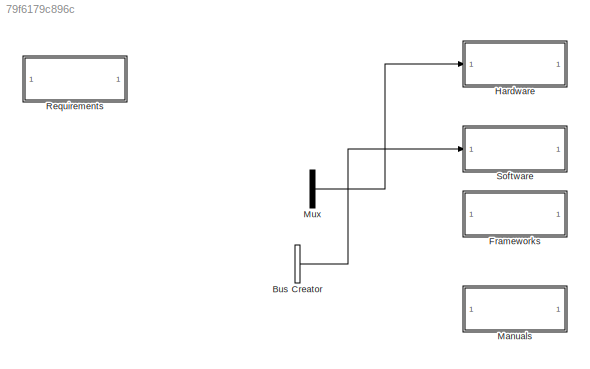
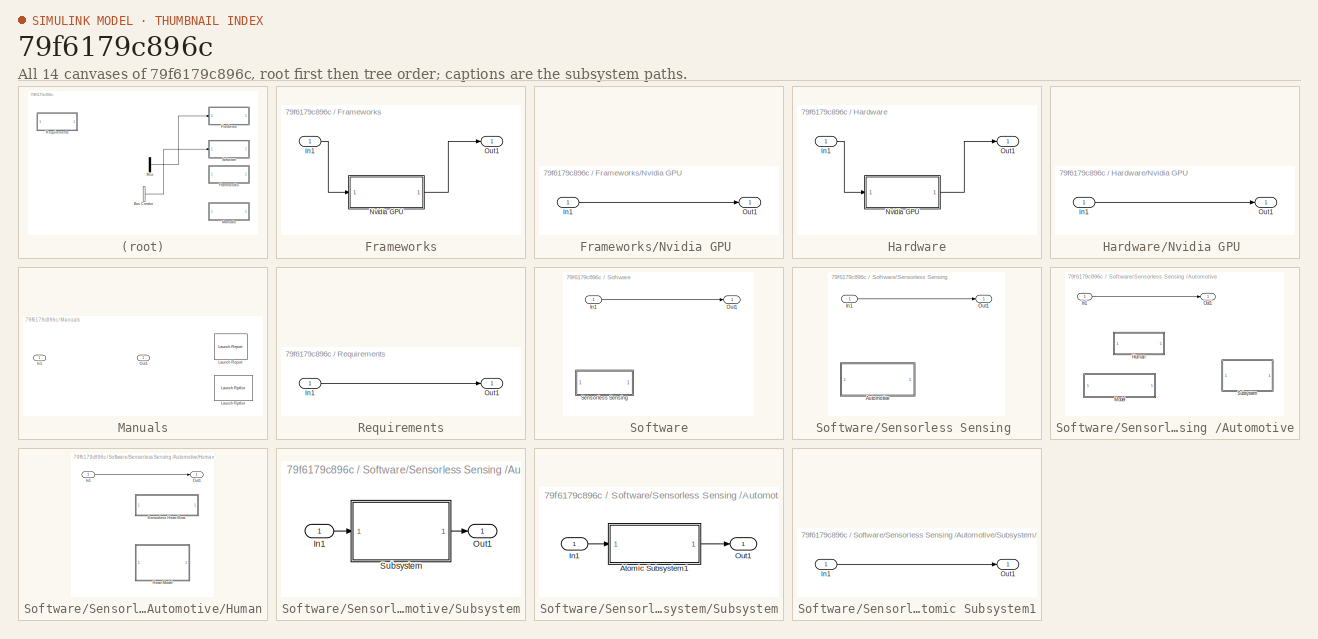
[diagram: thumbnail index - all 14 canvases of the model, root first then tree order]
MODEL slx_79f6179c896c
KIND model
CONFIG AbsTol = auto
CONFIG EnableMultiTasking = off
CONFIG FixedStep = auto
CONFIG MaxStep = auto
CONFIG MinStep = auto
CONFIG RelTol = 1e-3
CONFIG SampleTimeConstraint = Unconstrained
CONFIG Solver = VariableStepAuto
CONFIG SolverName = VariableStepAuto
CONFIG StartTime = 0.0
CONFIG StopTime = 10.0
BLOCK [BusCreator] Bus Creator
  DisplayOption = bar
  InheritFromInputs = on
  Inputs = 2
  Ports = [2, 1]
BLOCK [SubSystem] Frameworks
  Ports = [1, 1]
  RequestExecContextInheritance = off
  Variant = off
BLOCK [Inport] Frameworks/In1
  IconDisplay = Port number
BLOCK [SubSystem] Frameworks/Nvidia GPU 
  Ports = [1, 1]
  RequestExecContextInheritance = off
  TreatAsAtomicUnit = on
  Variant = off
BLOCK [Inport] Frameworks/Nvidia GPU /In1
  IconDisplay = Port number
BLOCK [Outport] Frameworks/Nvidia GPU /Out1
  IconDisplay = Port number
BLOCK [Outport] Frameworks/Out1
  IconDisplay = Port number
BLOCK [SubSystem] Hardware
  Ports = [1, 1]
  RequestExecContextInheritance = off
  Variant = off
BLOCK [Inport] Hardware/In1
  IconDisplay = Port number
BLOCK [SubSystem] Hardware/Nvidia GPU 
  Ports = [1, 1]
  RequestExecContextInheritance = off
  TreatAsAtomicUnit = on
  Variant = off
BLOCK [Inport] Hardware/Nvidia GPU /In1
  IconDisplay = Port number
BLOCK [Outport] Hardware/Nvidia GPU /Out1
  IconDisplay = Port number
BLOCK [Outport] Hardware/Out1
  IconDisplay = Port number
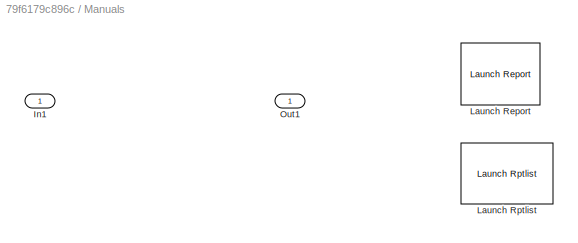
BLOCK [SubSystem] Manuals
  Ports = [1, 1]
  RequestExecContextInheritance = off
  Variant = off
BLOCK [Inport] Manuals/In1
  IconDisplay = Port number
BLOCK [Reference] Manuals/Launch Report  REF=rptgenlib/Launch Report
  Commented = on
  Description = Reports on the current system or model
  Ports = []
  SourceBlock = rptgenlib/Launch Report
  SourceProductBaseCode = SR
  SourceProductName = Simulink Report Generator
  SourceType = rptgen_generate_report
  Tag = rptgen_sl
BLOCK [Reference] Manuals/Launch Rptlist  REF=rptgenlib/Launch Rptlist
  Commented = on
  Description = This block launches the Report Generator Explorer. It lists all the setup files which the Report Generator can use to generate reports.  This GUI can also be used to set the current system's "ReportName" property.
  Ports = []
  SourceBlock = rptgenlib/Launch Rptlist
  SourceProductBaseCode = SR
  SourceProductName = Simulink Report Generator
  SourceType = rptgen_show_rptlist
  Tag = rptgen_sl
BLOCK [Outport] Manuals/Out1
  IconDisplay = Port number
BLOCK [Mux] Mux
  DisplayOption = bar
  Inputs = 2
  Ports = [2, 1]
BLOCK [SubSystem] Requirements
  Ports = [1, 1]
  RequestExecContextInheritance = off
  Variant = off
BLOCK [Inport] Requirements/In1
  IconDisplay = Port number
BLOCK [Outport] Requirements/Out1
  IconDisplay = Port number
BLOCK [SubSystem] Software
  Ports = [1, 1]
  RequestExecContextInheritance = off
  Variant = off
BLOCK [Inport] Software/In1
  IconDisplay = Port number
BLOCK [Outport] Software/Out1
  IconDisplay = Port number
BLOCK [SubSystem] Software/Sensorless Sensing 
  Ports = [1, 1]
  RequestExecContextInheritance = off
  TreatAsAtomicUnit = on
  Variant = off
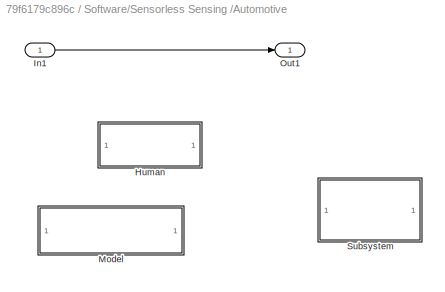
BLOCK [SubSystem] Software/Sensorless Sensing /Automotive
  Ports = [1, 1]
  RequestExecContextInheritance = off
  TreatAsAtomicUnit = on
  Variant = off
BLOCK [SubSystem] Software/Sensorless Sensing /Automotive/Human
  Ports = [1, 1]
  RequestExecContextInheritance = off
  TreatAsAtomicUnit = on
  Variant = off
BLOCK [ModelReference] Software/Sensorless Sensing /Automotive/Human/Heart  Model
  ModelNameDialog = heart.slx
  ModelReferenceVersion = 1.14
  Ports = []
  Variant = off
BLOCK [Inport] Software/Sensorless Sensing /Automotive/Human/In1
  IconDisplay = Port number
BLOCK [Outport] Software/Sensorless Sensing /Automotive/Human/Out1
  IconDisplay = Port number
BLOCK [ModelReference] Software/Sensorless Sensing /Automotive/Human/Sensorless Heart Beat
  ModelNameDialog = SensorlessHeartBeatEstimate.slx
  ModelReferenceVersion = 1.3
  Ports = []
  Variant = off
BLOCK [Inport] Software/Sensorless Sensing /Automotive/In1
  IconDisplay = Port number
BLOCK [ModelReference] Software/Sensorless Sensing /Automotive/Model
  Commented = on
  ModelNameDialog = sldemo_fuelsys.slx
  ModelReferenceVersion = 1.738
  Ports = []
  Variant = off
BLOCK [Outport] Software/Sensorless Sensing /Automotive/Out1
  IconDisplay = Port number
BLOCK [SubSystem] Software/Sensorless Sensing /Automotive/Subsystem
  Ports = [1, 1]
  RequestExecContextInheritance = off
  TreatAsAtomicUnit = on
  Variant = off
BLOCK [Inport] Software/Sensorless Sensing /Automotive/Subsystem/In1
  IconDisplay = Port number
BLOCK [Outport] Software/Sensorless Sensing /Automotive/Subsystem/Out1
  IconDisplay = Port number
BLOCK [SubSystem] Software/Sensorless Sensing /Automotive/Subsystem/Subsystem
  Ports = [1, 1]
  RequestExecContextInheritance = off
  Variant = off
BLOCK [SubSystem] Software/Sensorless Sensing /Automotive/Subsystem/Subsystem/Atomic Subsystem1
  Ports = [1, 1]
  RequestExecContextInheritance = off
  TreatAsAtomicUnit = on
  Variant = off
BLOCK [Inport] Software/Sensorless Sensing /Automotive/Subsystem/Subsystem/Atomic Subsystem1/In1
  IconDisplay = Port number
BLOCK [Outport] Software/Sensorless Sensing /Automotive/Subsystem/Subsystem/Atomic Subsystem1/Out1
  IconDisplay = Port number
BLOCK [Inport] Software/Sensorless Sensing /Automotive/Subsystem/Subsystem/In1
  IconDisplay = Port number
BLOCK [Outport] Software/Sensorless Sensing /Automotive/Subsystem/Subsystem/Out1
  IconDisplay = Port number
BLOCK [Inport] Software/Sensorless Sensing /In1
  IconDisplay = Port number
BLOCK [Outport] Software/Sensorless Sensing /Out1
  IconDisplay = Port number
LINE Bus Creator:1 -> Software:1
LINE Frameworks/In1:1 -> Frameworks/Nvidia GPU :1
LINE Frameworks/Nvidia GPU /In1:1 -> Frameworks/Nvidia GPU /Out1:1
LINE Frameworks/Nvidia GPU :1 -> Frameworks/Out1:1
LINE Hardware/In1:1 -> Hardware/Nvidia GPU :1
LINE Hardware/Nvidia GPU /In1:1 -> Hardware/Nvidia GPU /Out1:1
LINE Hardware/Nvidia GPU :1 -> Hardware/Out1:1
LINE Mux:1 -> Hardware:1
LINE Requirements/In1:1 -> Requirements/Out1:1
LINE Software/In1:1 -> Software/Out1:1
LINE Software/Sensorless Sensing /Automotive/Human/In1:1 -> Software/Sensorless Sensing /Automotive/Human/Out1:1
LINE Software/Sensorless Sensing /Automotive/In1:1 -> Software/Sensorless Sensing /Automotive/Out1:1
LINE Software/Sensorless Sensing /Automotive/Subsystem/In1:1 -> Software/Sensorless Sensing /Automotive/Subsystem/Subsystem:1
LINE Software/Sensorless Sensing /Automotive/Subsystem/Subsystem/Atomic Subsystem1/In1:1 -> Software/Sensorless Sensing /Automotive/Subsystem/Subsystem/Atomic Subsystem1/Out1:1
LINE Software/Sensorless Sensing /Automotive/Subsystem/Subsystem/Atomic Subsystem1:1 -> Software/Sensorless Sensing /Automotive/Subsystem/Subsystem/Out1:1
LINE Software/Sensorless Sensing /Automotive/Subsystem/Subsystem/In1:1 -> Software/Sensorless Sensing /Automotive/Subsystem/Subsystem/Atomic Subsystem1:1
LINE Software/Sensorless Sensing /Automotive/Subsystem/Subsystem:1 -> Software/Sensorless Sensing /Automotive/Subsystem/Out1:1
LINE Software/Sensorless Sensing /In1:1 -> Software/Sensorless Sensing /Out1:1
